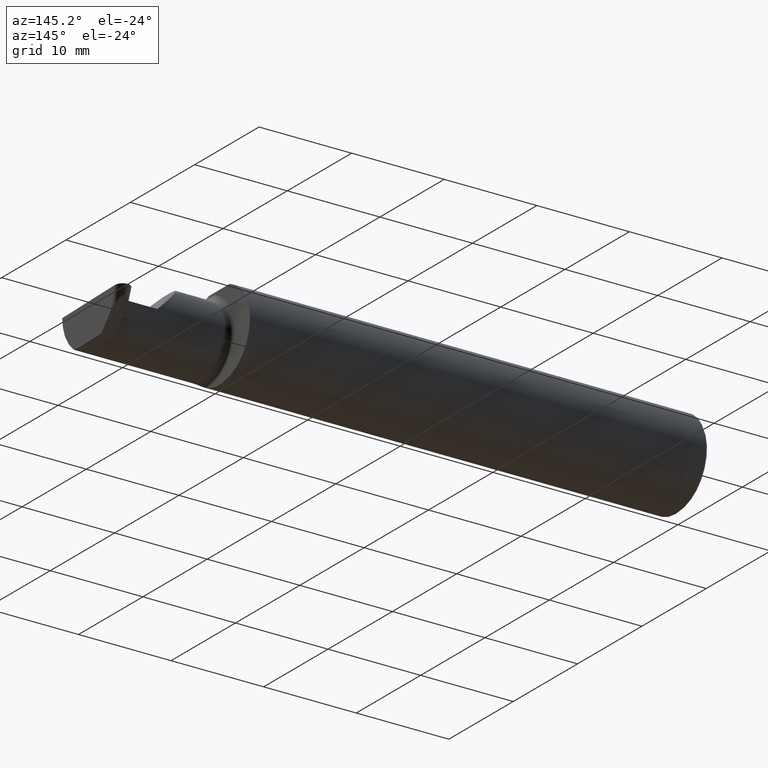
[diagram: clean part render]
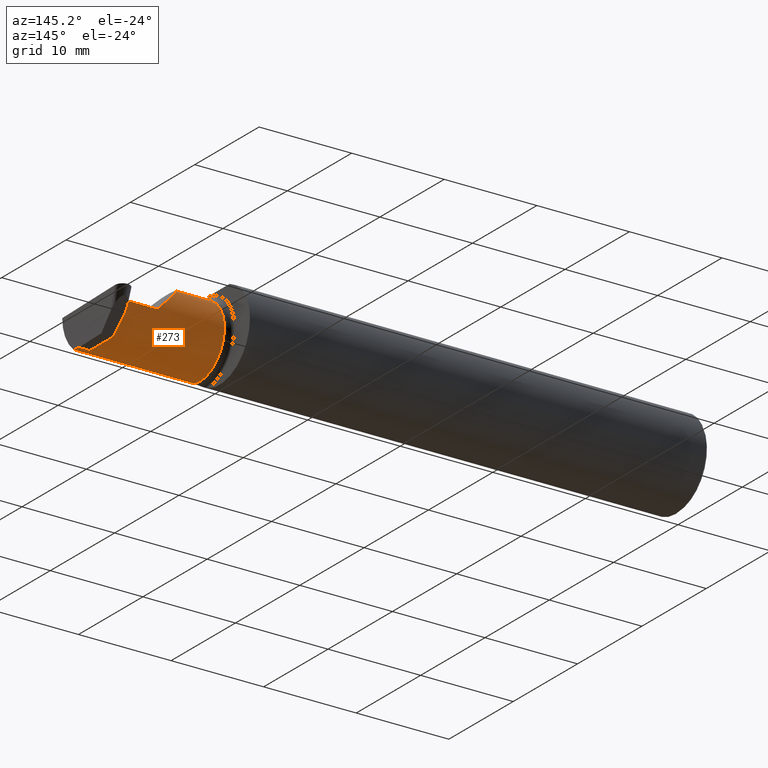
[diagram: same view with one face highlighted and labeled with its STEP entity id]
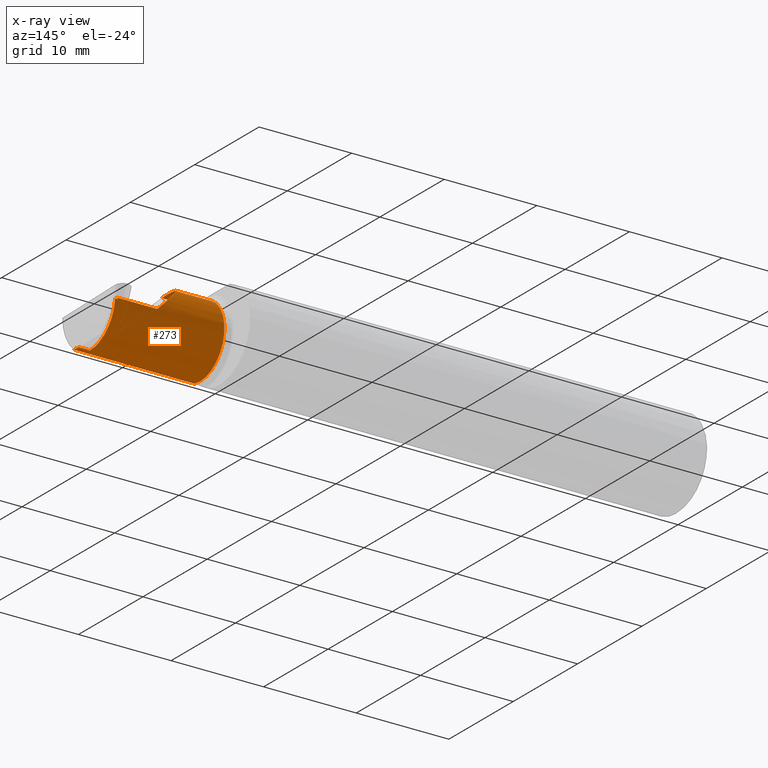
[diagram: x-ray of the same camera — body ghosted, the highlighted face saturated]
A machine part, auxiliary view. The second image highlights one B-rep face of the part: STEP entity #273.
The next image is the same camera in x-ray: the body ghosted, the highlighted face saturated — about 0% of this face is hidden behind the body in this view.
In plain terms, the highlighted cylindrical surface (partial cylindrical patch) has radius 3.81 mm, axis along (-1, -0, -0).
Its self-contained STEP definition (entity closure, byte-faithful):
#3 = CARTESIAN_POINT ( 'NONE',  ( 2.489143054109411057, -0.08335000000000006293, -0.1500000000000000500 ) ) ;
#10 = VERTEX_POINT ( 'NONE', #521 ) ;
#14 = VERTEX_POINT ( 'NONE', #621 ) ;
#29 = CARTESIAN_POINT ( 'NONE',  ( 2.488744025780163405, -0.09477667630339421667, -0.1500000000000000222 ) ) ;
#37 = LINE ( 'NONE', #413, #609 ) ;
#41 = LINE ( 'NONE', #593, #493 ) ;
#52 = CARTESIAN_POINT ( 'NONE',  ( 1.974999999999999867, -0.1172600179964006784, 0.1461167706989303650 ) ) ;
#60 = ORIENTED_EDGE ( 'NONE', *, *, #391, .T. ) ;
#80 =( BOUNDED_CURVE ( )  B_SPLINE_CURVE ( 3, ( #396, #615, #507, #595 ),
 .UNSPECIFIED., .F., .F. ) 
 B_SPLINE_CURVE_WITH_KNOTS ( ( 4, 4 ),
 ( 6.055147272130144920, 7.853981633974482790 ),
 .UNSPECIFIED. ) 
 CURVE ( )  GEOMETRIC_REPRESENTATION_ITEM ( )  RATIONAL_B_SPLINE_CURVE ( ( 1.000000000000000000, 0.7480442670255273985, 0.7480442670255273985, 1.000000000000000000 ) ) 
 REPRESENTATION_ITEM ( '' )  );
#107 = ORIENTED_EDGE ( 'NONE', *, *, #292, .T. ) ;
#111 = VERTEX_POINT ( 'NONE', #197 ) ;
#113 = VERTEX_POINT ( 'NONE', #52 ) ;
#115 = VECTOR ( 'NONE', #404, 39.37007874015748143 ) ;
#125 = LINE ( 'NONE', #138, #115 ) ;
#137 = VERTEX_POINT ( 'NONE', #299 ) ;
#138 = CARTESIAN_POINT ( 'NONE',  ( 2.733184360054361939, -0.08335000000000006293, -0.1500000000000000500 ) ) ;
#139 = CARTESIAN_POINT ( 'NONE',  ( 2.430678306684182832, 0.06658908270190941336, -0.003489949670254420978 ) ) ;
#156 = LINE ( 'NONE', #537, #608 ) ;
#162 = ORIENTED_EDGE ( 'NONE', *, *, #490, .F. ) ;
#188 = DIRECTION ( 'NONE',  ( 0.000000000000000000, -1.000000000000000000, 0.000000000000000000 ) ) ;
#193 = CARTESIAN_POINT ( 'NONE',  ( 2.489143054109411057, -0.08335000000000006293, -0.1500000000000000500 ) ) ;
#195 = DIRECTION ( 'NONE',  ( -1.000000000000000000, -3.506966766154694863E-17, -0.000000000000000000 ) ) ;
#197 = CARTESIAN_POINT ( 'NONE',  ( 2.439954497345508511, 0.06655862405284596051, -0.005234924505382013322 ) ) ;
#199 = ORIENTED_EDGE ( 'NONE', *, *, #564, .T. ) ;
#205 = CIRCLE ( 'NONE', #468, 0.1500000000000000500 ) ;
#208 =( BOUNDED_CURVE ( )  B_SPLINE_CURVE ( 3, ( #343, #522, #29, #193 ),
 .UNSPECIFIED., .F., .F. ) 
 B_SPLINE_CURVE_WITH_KNOTS ( ( 4, 4 ),
 ( 0.8789888184544045746, 1.107026853503847663 ),
 .UNSPECIFIED. ) 
 CURVE ( )  GEOMETRIC_REPRESENTATION_ITEM ( )  RATIONAL_B_SPLINE_CURVE ( ( 1.000000000000000000, 0.9956712472009929815, 0.9956712472009929815, 1.000000000000000000 ) ) 
 REPRESENTATION_ITEM ( '' )  );
#210 = CARTESIAN_POINT ( 'NONE',  ( 2.430647848035137226, 0.06655862405286416816, -0.005234924505381627347 ) ) ;
#219 = EDGE_CURVE ( 'NONE', #113, #137, #205, .T. ) ;
#224 = DIRECTION ( 'NONE',  ( 1.000000000000000000, 3.506966766154694863E-17, 0.000000000000000000 ) ) ;
#247 = EDGE_CURVE ( 'NONE', #392, #14, #348, .T. ) ;
#248 = FACE_OUTER_BOUND ( 'NONE', #436, .T. ) ;
#253 = CARTESIAN_POINT ( 'NONE',  ( 1.974999999999999867, -0.08335000000000000742, 0.000000000000000000 ) ) ;
#262 = VECTOR ( 'NONE', #224, 39.37007874015748143 ) ;
#270 = ORIENTED_EDGE ( 'NONE', *, *, #247, .F. ) ;
#273 = ADVANCED_FACE ( 'NONE', ( #248 ), #470, .T. ) ;
#279 = CARTESIAN_POINT ( 'NONE',  ( 2.442617647571764028, -0.08334999999999999354, -0.1500000000000000500 ) ) ;
#286 = CARTESIAN_POINT ( 'NONE',  ( 2.439954497345508511, 0.06655862405284596051, -0.005234924505382013322 ) ) ;
#292 = EDGE_CURVE ( 'NONE', #10, #14, #538, .T. ) ;
#294 = DIRECTION ( 'NONE',  ( 1.000000000000000000, 3.506966766154694863E-17, 0.000000000000000000 ) ) ;
#299 = CARTESIAN_POINT ( 'NONE',  ( 1.974999999999999867, -0.1172600179964005396, -0.1461167706989303927 ) ) ;
#306 = AXIS2_PLACEMENT_3D ( 'NONE', #691, #195, #415 ) ;
#343 = CARTESIAN_POINT ( 'NONE',  ( 2.488026713523223243, -0.1172600179964006090, -0.1461167706989303927 ) ) ;
#348 = B_SPLINE_CURVE_WITH_KNOTS ( 'NONE', 3,
 ( #634, #139, #361, #582 ),
 .UNSPECIFIED., .F., .F.,
 ( 4, 4 ),
 ( 0.000000000000000000, 1.000000000000000000 ),
 .UNSPECIFIED. ) ;
#361 = CARTESIAN_POINT ( 'NONE',  ( 2.430708765333227994, 0.06661954135095467244, -0.001744974835127210272 ) ) ;
#375 = CARTESIAN_POINT ( 'NONE',  ( 2.442617647571764028, -0.08334999999999999354, -0.1500000000000000500 ) ) ;
#384 = CARTESIAN_POINT ( 'NONE',  ( 2.113883229301068312, -0.1172600179964003175, 0.1461167706989304760 ) ) ;
#390 = CARTESIAN_POINT ( 'NONE',  ( 1.949999999999999956, 0.06665000000000001479, 6.735557395310446214E-17 ) ) ;
#391 = EDGE_CURVE ( 'NONE', #421, #10, #80, .T. ) ;
#392 = VERTEX_POINT ( 'NONE', #210 ) ;
#396 = CARTESIAN_POINT ( 'NONE',  ( 2.113883229301068312, -0.1172600179964003175, 0.1461167706989304760 ) ) ;
#398 = EDGE_CURVE ( 'NONE', #427, #111, #443, .T. ) ;
#403 = ORIENTED_EDGE ( 'NONE', *, *, #506, .F. ) ;
#404 = DIRECTION ( 'NONE',  ( -1.000000000000000000, -0.000000000000000000, -0.000000000000000000 ) ) ;
#413 = CARTESIAN_POINT ( 'NONE',  ( 2.205930449999999876, -0.1172600179964006090, 0.1461167706989303927 ) ) ;
#415 = DIRECTION ( 'NONE',  ( 0.000000000000000000, -1.000000000000000000, 0.000000000000000000 ) ) ;
#421 = VERTEX_POINT ( 'NONE', #384 ) ;
#427 = VERTEX_POINT ( 'NONE', #279 ) ;
#436 = EDGE_LOOP ( 'NONE', ( #199, #666, #530, #60, #107, #270, #495, #632, #403, #162 ) ) ;
#443 =( BOUNDED_CURVE ( )  B_SPLINE_CURVE ( 3, ( #375, #447, #561, #286 ),
 .UNSPECIFIED., .F., .F. ) 
 B_SPLINE_CURVE_WITH_KNOTS ( ( 4, 4 ),
 ( 3.159045946109734437, 4.694935687864694174 ),
 .UNSPECIFIED. ) 
 CURVE ( )  GEOMETRIC_REPRESENTATION_ITEM ( )  RATIONAL_B_SPLINE_CURVE ( ( 1.000000000000000000, 0.8128932002257790446, 0.8128932002257790446, 1.000000000000000000 ) ) 
 REPRESENTATION_ITEM ( '' )  );
#447 = CARTESIAN_POINT ( 'NONE',  ( 2.442590694315768474, 0.002105059811798098198, -0.1500000000000000777 ) ) ;
#464 = EDGE_CURVE ( 'NONE', #113, #421, #37, .T. ) ;
#468 = AXIS2_PLACEMENT_3D ( 'NONE', #253, #682, #188 ) ;
#470 = CYLINDRICAL_SURFACE ( 'NONE', #306, 0.1500000000000000500 ) ;
#476 = CARTESIAN_POINT ( 'NONE',  ( 2.488026713523223243, -0.1172600179964006090, -0.1461167706989303927 ) ) ;
#489 = DIRECTION ( 'NONE',  ( -1.000000000000000000, -3.506966766154694863E-17, -0.000000000000000000 ) ) ;
#490 = EDGE_CURVE ( 'NONE', #661, #680, #208, .T. ) ;
#493 = VECTOR ( 'NONE', #489, 39.37007874015748143 ) ;
#495 = ORIENTED_EDGE ( 'NONE', *, *, #625, .F. ) ;
#506 = EDGE_CURVE ( 'NONE', #680, #427, #125, .T. ) ;
#507 = CARTESIAN_POINT ( 'NONE',  ( 2.155331797197863608, 0.06665000000000002867, 0.1046682028021359151 ) ) ;
#521 = CARTESIAN_POINT ( 'NONE',  ( 2.260000000000000231, 0.06665000000000001479, 6.735557395310446214E-17 ) ) ;
#522 = CARTESIAN_POINT ( 'NONE',  ( 2.488370294460939824, -0.1061291577212408743, -0.1486999626928446339 ) ) ;
#530 = ORIENTED_EDGE ( 'NONE', *, *, #464, .T. ) ;
#537 = CARTESIAN_POINT ( 'NONE',  ( 2.205930449999999876, -0.1172600179964006090, -0.1461167706989303927 ) ) ;
#538 = LINE ( 'NONE', #390, #262 ) ;
#561 = CARTESIAN_POINT ( 'NONE',  ( 2.441498648347320888, 0.06357628547474597491, -0.09063792740366179157 ) ) ;
#564 = EDGE_CURVE ( 'NONE', #661, #137, #156, .T. ) ;
#582 = CARTESIAN_POINT ( 'NONE',  ( 2.430739223982273156, 0.06664999999999991764, 0.000000000000000000 ) ) ;
#593 = CARTESIAN_POINT ( 'NONE',  ( 1.949999999999998845, 0.06655862405285700723, -0.005234924505586353340 ) ) ;
#595 = CARTESIAN_POINT ( 'NONE',  ( 2.260000000000000231, 0.06665000000000001479, 6.735557395310446214E-17 ) ) ;
#608 = VECTOR ( 'NONE', #692, 39.37007874015748143 ) ;
#609 = VECTOR ( 'NONE', #294, 39.37007874015748143 ) ;
#615 = CARTESIAN_POINT ( 'NONE',  ( 2.090221225029926355, -0.01530148607434139371, 0.1697787749700724880 ) ) ;
#621 = CARTESIAN_POINT ( 'NONE',  ( 2.430739223982273156, 0.06664999999999991764, 0.000000000000000000 ) ) ;
#625 = EDGE_CURVE ( 'NONE', #111, #392, #41, .T. ) ;
#632 = ORIENTED_EDGE ( 'NONE', *, *, #398, .F. ) ;
#634 = CARTESIAN_POINT ( 'NONE',  ( 2.430647848035137226, 0.06655862405286416816, -0.005234924505381627347 ) ) ;
#661 = VERTEX_POINT ( 'NONE', #476 ) ;
#666 = ORIENTED_EDGE ( 'NONE', *, *, #219, .F. ) ;
#680 = VERTEX_POINT ( 'NONE', #3 ) ;
#682 = DIRECTION ( 'NONE',  ( -1.000000000000000000, -3.506966766154694863E-17, -0.000000000000000000 ) ) ;
#691 = CARTESIAN_POINT ( 'NONE',  ( 1.949999999999999956, -0.08335000000000000742, 0.000000000000000000 ) ) ;
#692 = DIRECTION ( 'NONE',  ( -1.000000000000000000, -3.506966766154694863E-17, -0.000000000000000000 ) ) ;